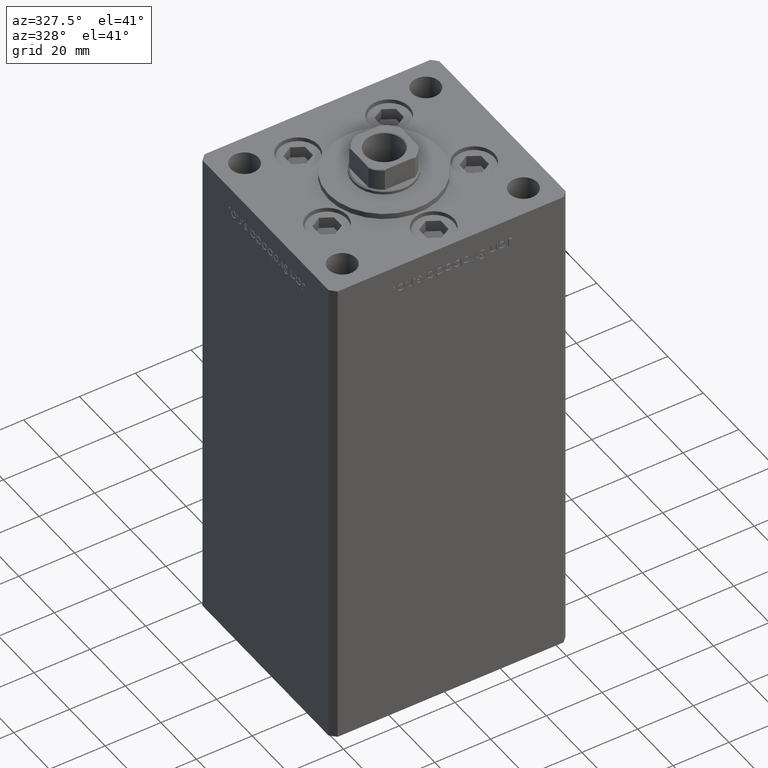
[diagram: clean part render]
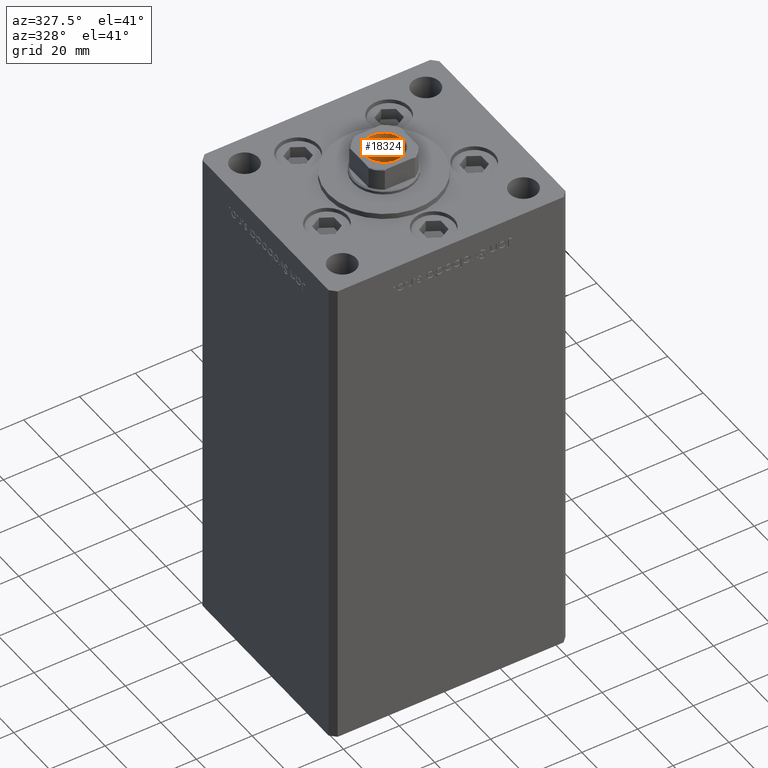
[diagram: same view with one face highlighted and labeled with its STEP entity id]
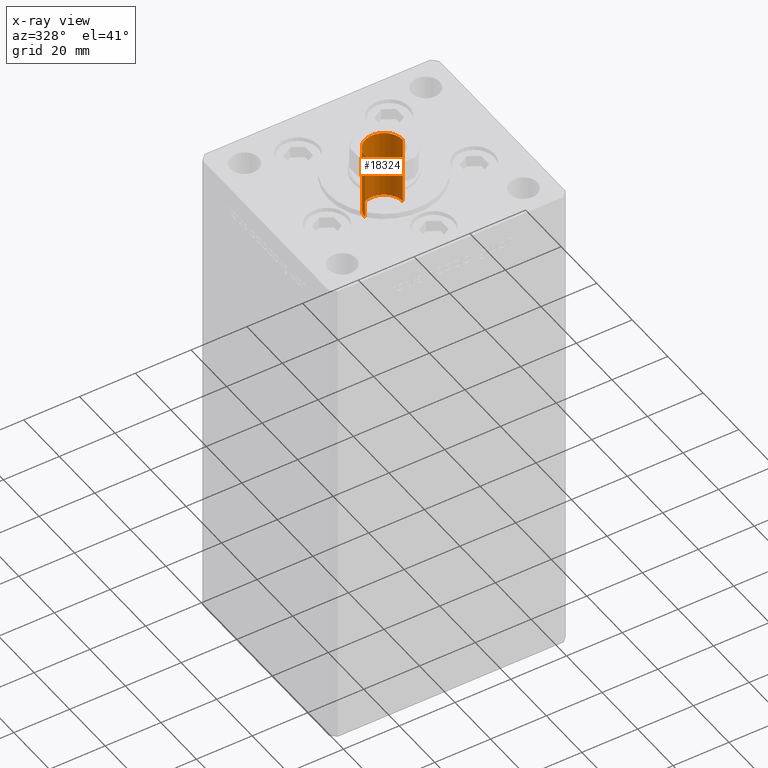
[diagram: x-ray of the same camera — body ghosted, the highlighted face saturated]
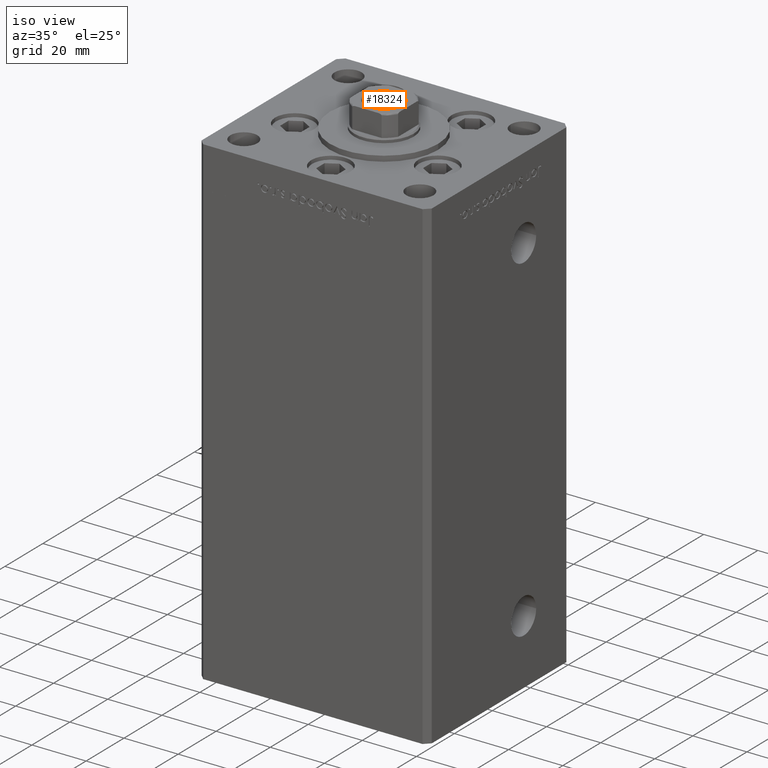
[diagram: same view with one face highlighted and labeled with its STEP entity id]
A machine part, auxiliary view. The second image highlights one B-rep face of the part: STEP entity #18324.
The next image is the same camera in x-ray: the body ghosted, the highlighted face saturated — about 0% of this face is hidden behind the body in this view.
A second angle (iso view) of the same face is appended — the face is thin or edge-on in the first view.
In plain terms, the highlighted cylindrical surface (edge-blend (fillet) strip) has radius 6.75 mm, axis along (0, 0, 1).
Its self-contained STEP definition (entity closure, byte-faithful):
#341 = CARTESIAN_POINT ( 'NONE',  ( -6.749999999999995559, 8.266365894244628417E-16, 155.7500000000000000 ) ) ;
#447 = EDGE_CURVE ( 'NONE', #40787, #19601, #15039, .T. ) ;
#475 = CARTESIAN_POINT ( 'NONE',  ( 6.749999999999993783, 0.000000000000000000, 130.7500000000000000 ) ) ;
#607 = LINE ( 'NONE', #341, #37043 ) ;
#650 = CIRCLE ( 'NONE', #17422, 6.749999999999995559 ) ;
#3723 = ORIENTED_EDGE ( 'NONE', *, *, #21973, .T. ) ;
#7330 = DIRECTION ( 'NONE',  ( -0.000000000000000000, -0.000000000000000000, 1.000000000000000000 ) ) ;
#8294 = DIRECTION ( 'NONE',  ( -0.000000000000000000, -0.000000000000000000, 1.000000000000000000 ) ) ;
#9685 = FACE_OUTER_BOUND ( 'NONE', #22428, .T. ) ;
#9911 = VERTEX_POINT ( 'NONE', #12041 ) ;
#9949 = DIRECTION ( 'NONE',  ( 1.000000000000000000, 0.000000000000000000, 0.000000000000000000 ) ) ;
#10396 = ORIENTED_EDGE ( 'NONE', *, *, #447, .F. ) ;
#10466 = CYLINDRICAL_SURFACE ( 'NONE', #40109, 6.749999999999995559 ) ;
#11963 = DIRECTION ( 'NONE',  ( -0.000000000000000000, -0.000000000000000000, 1.000000000000000000 ) ) ;
#12041 = CARTESIAN_POINT ( 'NONE',  ( 6.749999999999995559, 0.000000000000000000, 155.4499999999999886 ) ) ;
#13642 = CARTESIAN_POINT ( 'NONE',  ( 0.000000000000000000, 0.000000000000000000, 155.7500000000000000 ) ) ;
#14792 = VERTEX_POINT ( 'NONE', #46620 ) ;
#15039 = CIRCLE ( 'NONE', #44482, 6.749999999999993783 ) ;
#15228 = VECTOR ( 'NONE', #8294, 1000.000000000000000 ) ;
#17422 = AXIS2_PLACEMENT_3D ( 'NONE', #19238, #35313, #23457 ) ;
#18324 = ADVANCED_FACE ( 'NONE', ( #9685 ), #10466, .F. ) ;
#19238 = CARTESIAN_POINT ( 'NONE',  ( 0.000000000000000000, 0.000000000000000000, 155.4499999999999886 ) ) ;
#19601 = VERTEX_POINT ( 'NONE', #24339 ) ;
#21390 = ORIENTED_EDGE ( 'NONE', *, *, #32774, .F. ) ;
#21973 = EDGE_CURVE ( 'NONE', #9911, #14792, #650, .T. ) ;
#22428 = EDGE_LOOP ( 'NONE', ( #21390, #10396, #30987, #3723 ) ) ;
#23457 = DIRECTION ( 'NONE',  ( 1.000000000000000000, 0.000000000000000000, 0.000000000000000000 ) ) ;
#24339 = CARTESIAN_POINT ( 'NONE',  ( -6.749999999999993783, 8.266365894244626445E-16, 130.7500000000000000 ) ) ;
#25772 = DIRECTION ( 'NONE',  ( -0.000000000000000000, -0.000000000000000000, 1.000000000000000000 ) ) ;
#28336 = LINE ( 'NONE', #47856, #15228 ) ;
#30987 = ORIENTED_EDGE ( 'NONE', *, *, #34588, .T. ) ;
#31839 = CARTESIAN_POINT ( 'NONE',  ( 0.000000000000000000, 0.000000000000000000, 130.7500000000000000 ) ) ;
#32774 = EDGE_CURVE ( 'NONE', #19601, #14792, #607, .T. ) ;
#34588 = EDGE_CURVE ( 'NONE', #40787, #9911, #28336, .T. ) ;
#35313 = DIRECTION ( 'NONE',  ( 0.000000000000000000, 0.000000000000000000, 1.000000000000000000 ) ) ;
#37043 = VECTOR ( 'NONE', #11963, 1000.000000000000000 ) ;
#40109 = AXIS2_PLACEMENT_3D ( 'NONE', #13642, #25772, #9949 ) ;
#40787 = VERTEX_POINT ( 'NONE', #475 ) ;
#44482 = AXIS2_PLACEMENT_3D ( 'NONE', #31839, #7330, #51890 ) ;
#46620 = CARTESIAN_POINT ( 'NONE',  ( -6.749999999999995559, 8.266365894244628417E-16, 155.4499999999999886 ) ) ;
#47856 = CARTESIAN_POINT ( 'NONE',  ( 6.749999999999995559, 0.000000000000000000, 155.7500000000000000 ) ) ;
#51890 = DIRECTION ( 'NONE',  ( 1.000000000000000000, 0.000000000000000000, 0.000000000000000000 ) ) ;